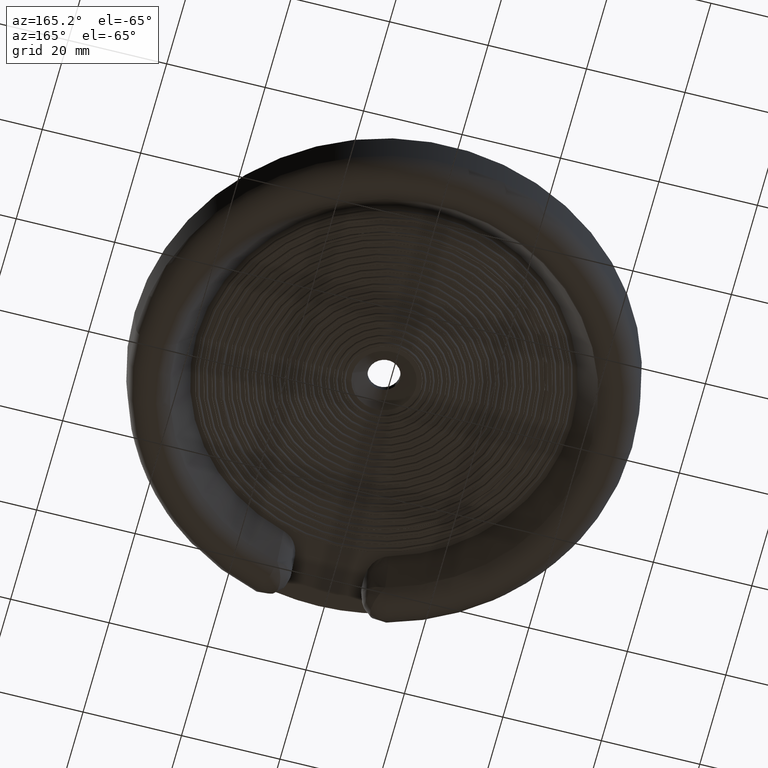
[diagram: clean part render]
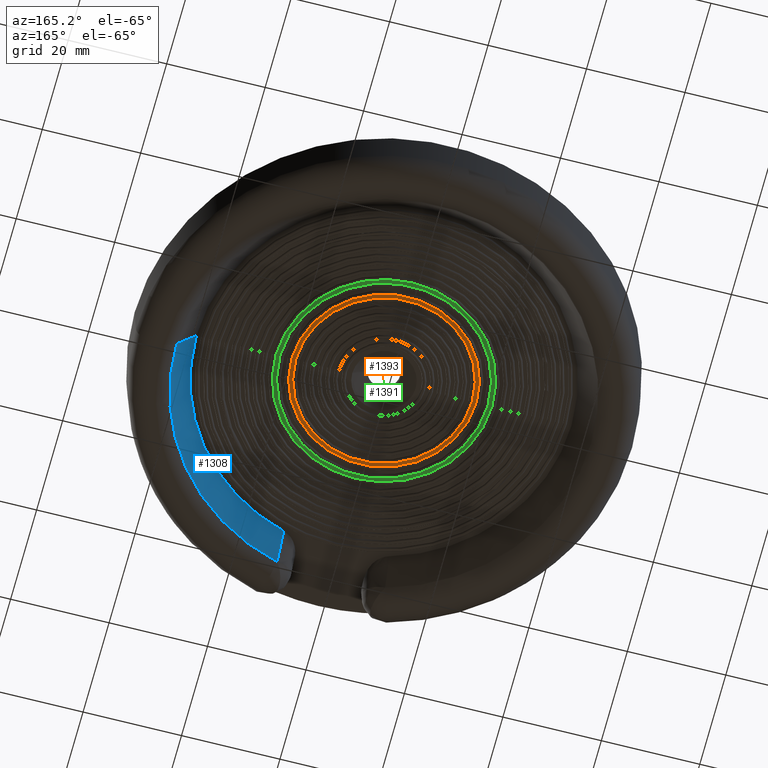
[diagram: same view with three faces highlighted in distinct colors, each labeled with its STEP entity id]
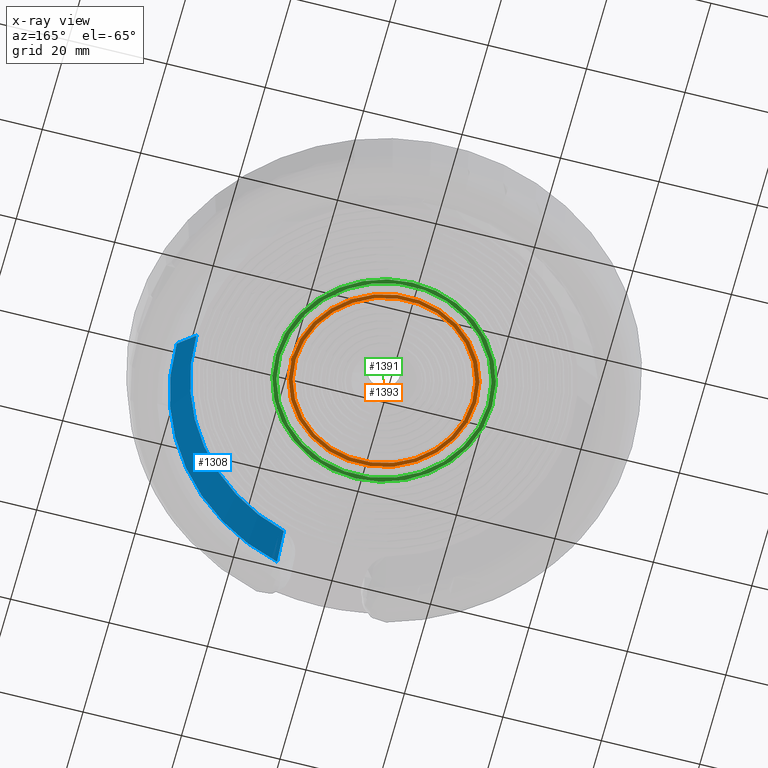
[diagram: x-ray of the same camera — body ghosted, the three highlighted faces saturated]
A machine part, auxiliary view with three faces highlighted in distinct colors.
The next image is the same camera in x-ray (body ghosted, the three faces saturated) — at least one of them is partly hidden behind the body in this view.
Their STEP definitions:

[orange] entity #1393 — the highlighted planar face has unit normal (-0, 0, 1).
#285 = AXIS2_PLACEMENT_3D ( 'NONE', #5645, #5646, #5647 ) ;
#286 = AXIS2_PLACEMENT_3D ( 'NONE', #5648, #5649, #5650 ) ;
#301 = AXIS2_PLACEMENT_3D ( 'NONE', #5678, #5692, #5693 ) ;
#310 = AXIS2_PLACEMENT_3D ( 'NONE', #5737, #5739, #5740 ) ;
#519 = CIRCLE ( 'NONE', #285, 0.7060291427061514700 ) ;
#520 = CIRCLE ( 'NONE', #286, 0.7379708572938483700 ) ;
#536 = CIRCLE ( 'NONE', #301, 0.7060291427061514700 ) ;
#559 = CIRCLE ( 'NONE', #310, 0.7379708572938483700 ) ;
#912 = VERTEX_POINT ( 'NONE', #2244 ) ;
#913 = VERTEX_POINT ( 'NONE', #2245 ) ;
#916 = VERTEX_POINT ( 'NONE', #2248 ) ;
#917 = VERTEX_POINT ( 'NONE', #2249 ) ;
#1152 = FACE_BOUND ( 'NONE', #5931, .T. ) ;
#1155 = FACE_OUTER_BOUND ( 'NONE', #5284, .T. ) ;
#1393 = ADVANCED_FACE ( 'NONE', ( #1152, #1155 ), #4544, .F. ) ;
#1913 = AXIS2_PLACEMENT_3D ( 'NONE', #4543, #4546, #4547 ) ;
#2244 = CARTESIAN_POINT ( 'NONE',  ( -0.7379708572938484800, 8.700595829756205900E-015, -0.3125000000000103800 ) ) ;
#2245 = CARTESIAN_POINT ( 'NONE',  ( 0.7379708572938484800, 8.873023861344929800E-015, -0.3125000000000103800 ) ) ;
#2248 = CARTESIAN_POINT ( 'NONE',  ( -0.7060291427061518000, 6.604352857693718200E-015, -0.3125000000000103800 ) ) ;
#2249 = CARTESIAN_POINT ( 'NONE',  ( 0.7060291427061518000, 6.596274205750606900E-015, -0.3125000000000103800 ) ) ;
#2418 = EDGE_CURVE ( 'NONE', #917, #916, #519, .T. ) ;
#2419 = EDGE_CURVE ( 'NONE', #913, #912, #520, .T. ) ;
#2433 = EDGE_CURVE ( 'NONE', #916, #917, #536, .T. ) ;
#2450 = EDGE_CURVE ( 'NONE', #912, #913, #559, .T. ) ;
#4543 = CARTESIAN_POINT ( 'NONE',  ( 1.500000000000000900, -1.092739197465705300E-015, -0.3125000000000103800 ) ) ;
#4544 = PLANE ( 'NONE',  #1913 ) ;
#4546 = DIRECTION ( 'NONE',  ( -5.551115123125785200E-017, 1.665334536937734100E-016, 1.000000000000000000 ) ) ;
#4547 = DIRECTION ( 'NONE',  ( 1.000000000000000000, 5.551115123125783900E-017, 5.551115123125783900E-017 ) ) ;
#5284 = EDGE_LOOP ( 'NONE', ( #5414, #5413 ) ) ;
#5413 = ORIENTED_EDGE ( 'NONE', *, *, #2419, .F. ) ;
#5414 = ORIENTED_EDGE ( 'NONE', *, *, #2450, .F. ) ;
#5415 = ORIENTED_EDGE ( 'NONE', *, *, #2433, .F. ) ;
#5416 = ORIENTED_EDGE ( 'NONE', *, *, #2418, .F. ) ;
#5645 = CARTESIAN_POINT ( 'NONE',  ( 0.0000000000000000000, 8.741913579725642300E-015, -0.3125000000000103800 ) ) ;
#5646 = DIRECTION ( 'NONE',  ( -0.0000000000000000000, -1.665334536937734100E-016, -1.000000000000000000 ) ) ;
#5647 = DIRECTION ( 'NONE',  ( 1.000000000000000000, 5.551115123125713100E-017, 9.673283397315991600E-017 ) ) ;
#5648 = CARTESIAN_POINT ( 'NONE',  ( 0.0000000000000000000, 8.741913579725642300E-015, -0.3125000000000103800 ) ) ;
#5649 = DIRECTION ( 'NONE',  ( 0.0000000000000000000, 1.665334536937734100E-016, 1.000000000000000000 ) ) ;
#5650 = DIRECTION ( 'NONE',  ( 1.000000000000000000, 5.551115123125843100E-017, 9.254593073234612200E-017 ) ) ;
#5678 = CARTESIAN_POINT ( 'NONE',  ( 0.0000000000000000000, 8.741913579725642300E-015, -0.3125000000000103800 ) ) ;
#5692 = DIRECTION ( 'NONE',  ( -0.0000000000000000000, -1.665334536937734100E-016, -1.000000000000000000 ) ) ;
#5693 = DIRECTION ( 'NONE',  ( 1.000000000000000000, 5.551115123125713100E-017, 9.673283397315991600E-017 ) ) ;
#5737 = CARTESIAN_POINT ( 'NONE',  ( 0.0000000000000000000, 8.741913579725642300E-015, -0.3125000000000103800 ) ) ;
#5739 = DIRECTION ( 'NONE',  ( 0.0000000000000000000, 1.665334536937734100E-016, 1.000000000000000000 ) ) ;
#5740 = DIRECTION ( 'NONE',  ( 1.000000000000000000, 5.551115123125843100E-017, 9.254593073234612200E-017 ) ) ;
#5931 = EDGE_LOOP ( 'NONE', ( #5416, #5415 ) ) ;

[blue] entity #1308 — the highlighted conical surface has half-angle 34 deg.
#31 = AXIS2_PLACEMENT_3D ( 'NONE', #2637, #2645, #2646 ) ;
#434 = ORIENTED_EDGE ( 'NONE', *, *, #2065, .T. ) ;
#436 = ORIENTED_EDGE ( 'NONE', *, *, #5334, .T. ) ;
#438 = ORIENTED_EDGE ( 'NONE', *, *, #5455, .F. ) ;
#442 = ORIENTED_EDGE ( 'NONE', *, *, #5456, .T. ) ;
#444 = ORIENTED_EDGE ( 'NONE', *, *, #2392, .T. ) ;
#625 = VERTEX_POINT ( 'NONE', #1007 ) ;
#628 = VERTEX_POINT ( 'NONE', #1010 ) ;
#630 = VERTEX_POINT ( 'NONE', #1012 ) ;
#631 = VERTEX_POINT ( 'NONE', #1013 ) ;
#637 = VERTEX_POINT ( 'NONE', #1019 ) ;
#778 = FACE_OUTER_BOUND ( 'NONE', #5843, .T. ) ;
#787 = CONICAL_SURFACE ( 'NONE', #3440, 1.657689983730316700, 0.5934119456780733200 ) ;
#1007 = CARTESIAN_POINT ( 'NONE',  ( 1.657689983730317000, 6.871685202678650100E-015, -0.5462850150039734200 ) ) ;
#1010 = CARTESIAN_POINT ( 'NONE',  ( 1.500000000000000200, 3.578680355060245200E-015, -0.3125000000000103800 ) ) ;
#1012 = CARTESIAN_POINT ( 'NONE',  ( 0.4368674751871525800, -1.599088143687959800, -0.5462850150039821900 ) ) ;
#1013 = CARTESIAN_POINT ( 'NONE',  ( 0.4215208187913516700, -1.439555556178876200, -0.3125000000000060500 ) ) ;
#1019 = CARTESIAN_POINT ( 'NONE',  ( 0.4327108322230658300, -1.599131968375208500, -0.5447308679663875900 ) ) ;
#1308 = ADVANCED_FACE ( 'NONE', ( #778 ), #787, .F. ) ;
#1684 = B_SPLINE_CURVE_WITH_KNOTS ( 'NONE', 3,
 ( #5556, #5568, #5569, #5570 ),
 .UNSPECIFIED., .F., .F.,
 ( 4, 4 ),
 ( 2.895949262011505200E-016, 0.0001170785465565505700 ),
 .UNSPECIFIED. ) ;
#1982 = AXIS2_PLACEMENT_3D ( 'NONE', #5252, #5253, #5254 ) ;
#2065 = EDGE_CURVE ( 'NONE', #625, #630, #4104, .T. ) ;
#2108 = B_SPLINE_CURVE_WITH_KNOTS ( 'NONE', 3,
 ( #2644, #2648, #2649, #2650, #2651, #2652, #2653 ),
 .UNSPECIFIED., .F., .F.,
 ( 4, 3, 4 ),
 ( 4.790767506851112200E-005, 0.003206175736224337000, 0.007210575466179494600 ),
 .UNSPECIFIED. ) ;
#2392 = EDGE_CURVE ( 'NONE', #630, #637, #1684, .T. ) ;
#2528 = CARTESIAN_POINT ( 'NONE',  ( 1.657689983730316700, 3.573246345033906900E-015, -0.5462850150039733100 ) ) ;
#2529 = DIRECTION ( 'NONE',  ( 0.5591929034707476800, -3.853966843334575200E-017, -0.8290375725550409600 ) ) ;
#2637 = CARTESIAN_POINT ( 'NONE',  ( 0.0000000000000000000, 8.741913579725642300E-015, -0.3125000000000103800 ) ) ;
#2644 = CARTESIAN_POINT ( 'NONE',  ( 0.4327108322230658300, -1.599131968375208500, -0.5447308679663875900 ) ) ;
#2645 = DIRECTION ( 'NONE',  ( 0.0000000000000000000, -1.665334536937734100E-016, -1.000000000000000000 ) ) ;
#2646 = DIRECTION ( 'NONE',  ( -1.000000000000000000, -5.551115123125786400E-017, -4.553079989440439300E-017 ) ) ;
#2648 = CARTESIAN_POINT ( 'NONE',  ( 0.4311043916392695000, -1.575702563570716000, -0.5105790979597295600 ) ) ;
#2649 = CARTESIAN_POINT ( 'NONE',  ( 0.4294825512614290900, -1.552263096596769600, -0.4764349481086976900 ) ) ;
#2650 = CARTESIAN_POINT ( 'NONE',  ( 0.4278434281738733900, -1.528812417964508200, -0.4422993361672085700 ) ) ;
#2651 = CARTESIAN_POINT ( 'NONE',  ( 0.4257651678302834500, -1.499079071029362200, -0.3990184568111844700 ) ) ;
#2652 = CARTESIAN_POINT ( 'NONE',  ( 0.4236591589954272200, -1.469327708120606600, -0.3557512667303846000 ) ) ;
#2653 = CARTESIAN_POINT ( 'NONE',  ( 0.4215208187913516700, -1.439555556178876200, -0.3125000000000060500 ) ) ;
#3440 = AXIS2_PLACEMENT_3D ( 'NONE', #4269, #4268, #4262 ) ;
#3530 = VECTOR ( 'NONE', #2529, 39.37007874015748900 ) ;
#3531 = LINE ( 'NONE', #2528, #3530 ) ;
#3577 = CIRCLE ( 'NONE', #31, 1.499999999999999800 ) ;
#4104 = CIRCLE ( 'NONE', #1982, 1.657689983730316700 ) ;
#4262 = DIRECTION ( 'NONE',  ( -1.000000000000000000, -5.551115123125785200E-017, -4.119962146837549300E-017 ) ) ;
#4268 = DIRECTION ( 'NONE',  ( 0.0000000000000000000, -1.665334536937734100E-016, -1.000000000000000000 ) ) ;
#4269 = CARTESIAN_POINT ( 'NONE',  ( 0.0000000000000000000, 3.278217592397115900E-015, -0.5462850150039734200 ) ) ;
#5252 = CARTESIAN_POINT ( 'NONE',  ( 0.0000000000000000000, 3.278217592397115900E-015, -0.5462850150039734200 ) ) ;
#5253 = DIRECTION ( 'NONE',  ( 0.0000000000000000000, -1.665334536937734100E-016, -1.000000000000000000 ) ) ;
#5254 = DIRECTION ( 'NONE',  ( -1.000000000000000000, -5.551115123125785200E-017, -4.119962146837549300E-017 ) ) ;
#5334 = EDGE_CURVE ( 'NONE', #628, #625, #3531, .T. ) ;
#5455 = EDGE_CURVE ( 'NONE', #628, #631, #3577, .T. ) ;
#5456 = EDGE_CURVE ( 'NONE', #637, #631, #2108, .T. ) ;
#5556 = CARTESIAN_POINT ( 'NONE',  ( 0.4368674751871525800, -1.599088143687959800, -0.5462850150039821900 ) ) ;
#5568 = CARTESIAN_POINT ( 'NONE',  ( 0.4353843174602697900, -1.599493339220186700, -0.5462850150039788600 ) ) ;
#5569 = CARTESIAN_POINT ( 'NONE',  ( 0.4339189244899041600, -1.599423647270829600, -0.5456161112943863600 ) ) ;
#5570 = CARTESIAN_POINT ( 'NONE',  ( 0.4327108322230658300, -1.599131968375208500, -0.5447308679663875900 ) ) ;
#5843 = EDGE_LOOP ( 'NONE', ( #438, #436, #434, #444, #442 ) ) ;

[green] entity #1391 — the highlighted planar face has unit normal (-0, 0, 1).
#281 = AXIS2_PLACEMENT_3D ( 'NONE', #5628, #5634, #5635 ) ;
#284 = AXIS2_PLACEMENT_3D ( 'NONE', #5636, #5638, #5639 ) ;
#514 = CIRCLE ( 'NONE', #281, 0.8320291427061514700 ) ;
#516 = CIRCLE ( 'NONE', #284, 0.8639708572938482600 ) ;
#899 = VERTEX_POINT ( 'NONE', #2231 ) ;
#900 = VERTEX_POINT ( 'NONE', #2232 ) ;
#903 = VERTEX_POINT ( 'NONE', #2235 ) ;
#904 = VERTEX_POINT ( 'NONE', #2236 ) ;
#1145 = FACE_OUTER_BOUND ( 'NONE', #5932, .T. ) ;
#1147 = FACE_BOUND ( 'NONE', #5927, .T. ) ;
#1391 = ADVANCED_FACE ( 'NONE', ( #1147, #1145 ), #4530, .F. ) ;
#1874 = AXIS2_PLACEMENT_3D ( 'NONE', #4531, #4539, #4540 ) ;
#1993 = AXIS2_PLACEMENT_3D ( 'NONE', #5505, #5506, #5507 ) ;
#2001 = AXIS2_PLACEMENT_3D ( 'NONE', #5559, #5560, #5561 ) ;
#2081 = EDGE_CURVE ( 'NONE', #903, #904, #4126, .T. ) ;
#2231 = CARTESIAN_POINT ( 'NONE',  ( -0.8639708572938484800, 8.693601424701067100E-015, -0.3125000000000103800 ) ) ;
#2232 = CARTESIAN_POINT ( 'NONE',  ( 0.8639708572938484800, 8.895448816069323100E-015, -0.3125000000000103800 ) ) ;
#2235 = CARTESIAN_POINT ( 'NONE',  ( -0.8320291427061516900, 6.612789002307837900E-015, -0.3125000000000103800 ) ) ;
#2236 = CARTESIAN_POINT ( 'NONE',  ( 0.8320291427061516900, 6.603268610805747200E-015, -0.3125000000000103800 ) ) ;
#2389 = EDGE_CURVE ( 'NONE', #899, #900, #4150, .T. ) ;
#2414 = EDGE_CURVE ( 'NONE', #904, #903, #514, .T. ) ;
#2415 = EDGE_CURVE ( 'NONE', #900, #899, #516, .T. ) ;
#4126 = CIRCLE ( 'NONE', #1993, 0.8320291427061514700 ) ;
#4150 = CIRCLE ( 'NONE', #2001, 0.8639708572938482600 ) ;
#4530 = PLANE ( 'NONE',  #1874 ) ;
#4531 = CARTESIAN_POINT ( 'NONE',  ( 1.500000000000000900, -1.092739197465705300E-015, -0.3125000000000103800 ) ) ;
#4539 = DIRECTION ( 'NONE',  ( -5.551115123125785200E-017, 1.665334536937734100E-016, 1.000000000000000000 ) ) ;
#4540 = DIRECTION ( 'NONE',  ( 1.000000000000000000, 5.551115123125783900E-017, 5.551115123125783900E-017 ) ) ;
#5422 = ORIENTED_EDGE ( 'NONE', *, *, #2415, .F. ) ;
#5505 = CARTESIAN_POINT ( 'NONE',  ( 0.0000000000000000000, 8.741913579725642300E-015, -0.3125000000000103800 ) ) ;
#5506 = DIRECTION ( 'NONE',  ( -0.0000000000000000000, -1.665334536937734100E-016, -1.000000000000000000 ) ) ;
#5507 = DIRECTION ( 'NONE',  ( 1.000000000000000000, 5.551115123125692100E-017, 8.208390347899967400E-017 ) ) ;
#5559 = CARTESIAN_POINT ( 'NONE',  ( 0.0000000000000000000, 8.741913579725642300E-015, -0.3125000000000103800 ) ) ;
#5560 = DIRECTION ( 'NONE',  ( 0.0000000000000000000, 1.665334536937734100E-016, 1.000000000000000000 ) ) ;
#5561 = DIRECTION ( 'NONE',  ( 1.000000000000000000, 5.551115123125806100E-017, 7.904919392249605500E-017 ) ) ;
#5628 = CARTESIAN_POINT ( 'NONE',  ( 0.0000000000000000000, 8.741913579725642300E-015, -0.3125000000000103800 ) ) ;
#5634 = DIRECTION ( 'NONE',  ( -0.0000000000000000000, -1.665334536937734100E-016, -1.000000000000000000 ) ) ;
#5635 = DIRECTION ( 'NONE',  ( 1.000000000000000000, 5.551115123125692100E-017, 8.208390347899967400E-017 ) ) ;
#5636 = CARTESIAN_POINT ( 'NONE',  ( 0.0000000000000000000, 8.741913579725642300E-015, -0.3125000000000103800 ) ) ;
#5638 = DIRECTION ( 'NONE',  ( 0.0000000000000000000, 1.665334536937734100E-016, 1.000000000000000000 ) ) ;
#5639 = DIRECTION ( 'NONE',  ( 1.000000000000000000, 5.551115123125806100E-017, 7.904919392249605500E-017 ) ) ;
#5821 = ORIENTED_EDGE ( 'NONE', *, *, #2081, .F. ) ;
#5823 = ORIENTED_EDGE ( 'NONE', *, *, #2414, .F. ) ;
#5824 = ORIENTED_EDGE ( 'NONE', *, *, #2389, .F. ) ;
#5927 = EDGE_LOOP ( 'NONE', ( #5823, #5821 ) ) ;
#5932 = EDGE_LOOP ( 'NONE', ( #5824, #5422 ) ) ;